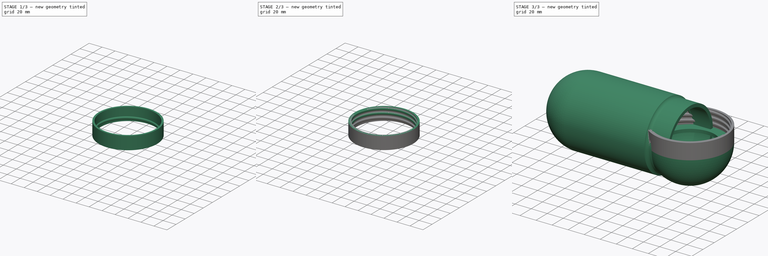
[diagram: build sequence overview — one tinted view per stage of 3, left to right]
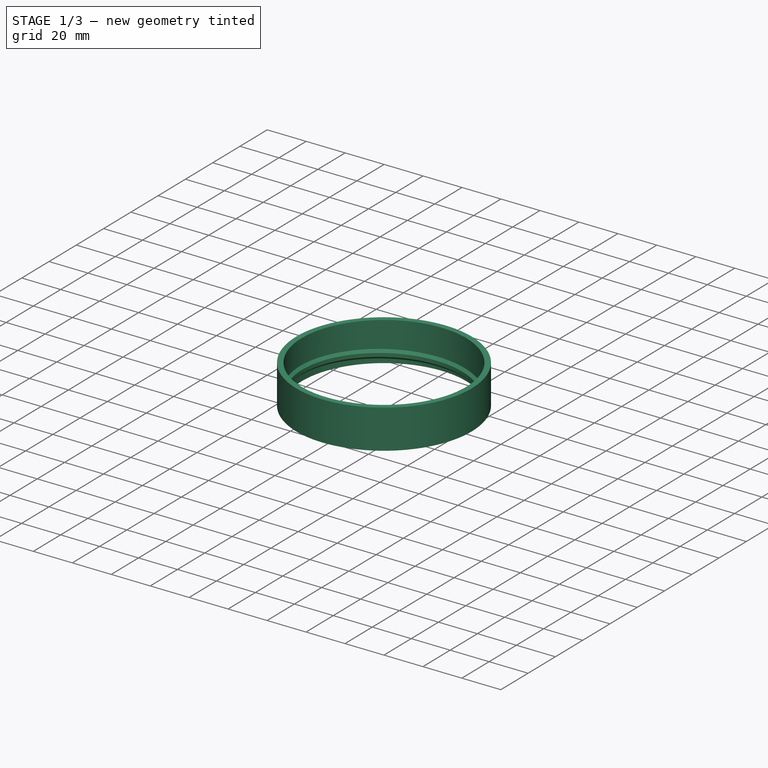
[diagram: stage 1 of 3 — iso view after this stage's code; geometry added in this stage tinted green]
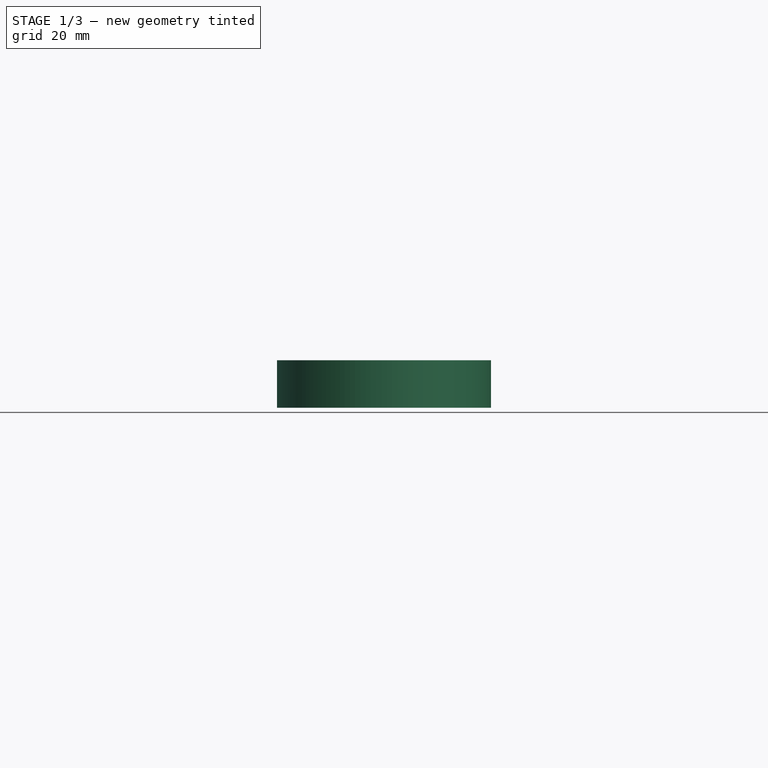
[diagram: stage 1 of 3 — front view after this stage's code; geometry added in this stage tinted green]
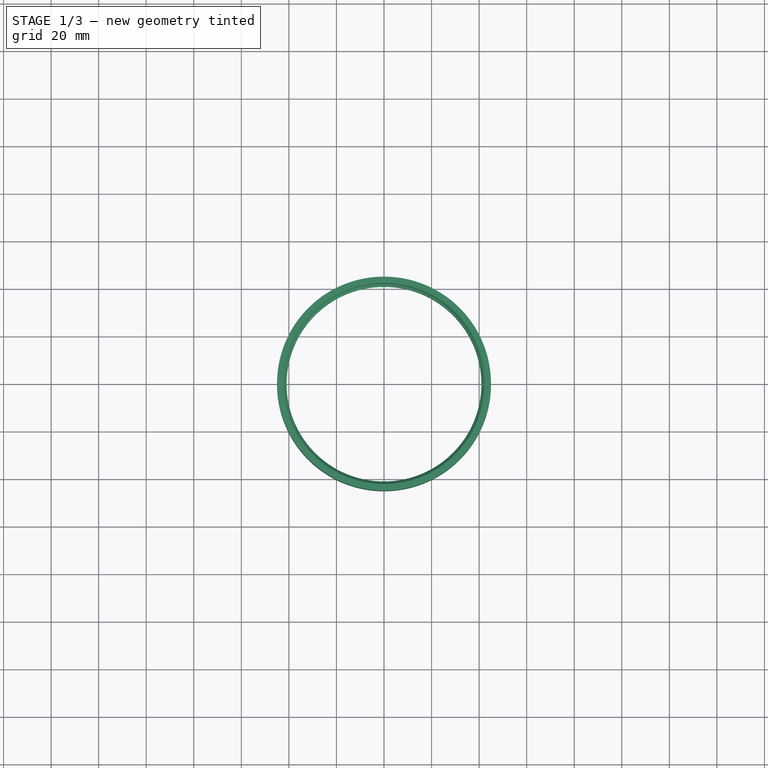
[diagram: stage 1 of 3 — top view after this stage's code; geometry added in this stage tinted green]
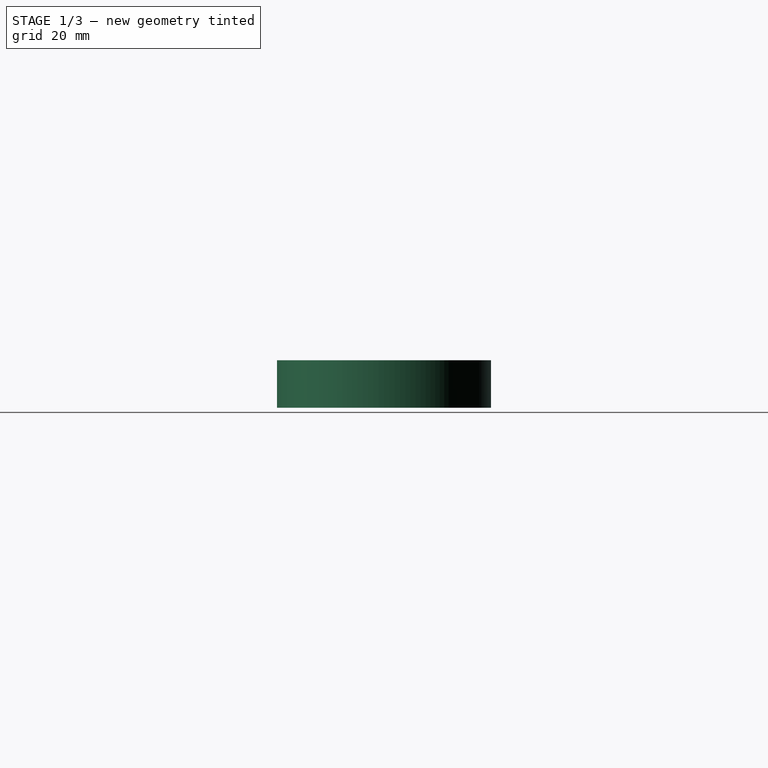
[diagram: stage 1 of 3 — right view after this stage's code; geometry added in this stage tinted green]
FCSTD DOCUMENT  (FreeCAD 0.19R)
Label: CrocSaintGerard_V2
License: All rights reserved
LicenseURL: http://en.wikipedia.org/wiki/All_rights_reserved
objects: Sketcher::SketchObject×5, PartDesign::Revolution×2, PartDesign::Body×2, Part::Helix×1, PartDesign::Pad×1, PartDesign::ShapeBinder×1, PartDesign::AdditivePipe×1, PartDesign::LinearPattern×1, PartDesign::Pocket×1
note: 20 computed .brp shape members not serialized (recipe doc carries the construction recipe); baked Part::Feature solids carry a one-line shape summary decoded from their .brp

FEATURE [Part::Helix] Helix
  Angle = 0
  AttacherType = Attacher::AttachEngine3D
  Height = 6.22
  LocalCoord = 0
  Pitch = 6.23
  Radius = 40.5
  Style = 1
FEATURE [Sketcher::SketchObject] Sketch001  label="sketch_cylindre_base"
  FullyConstrained = true
  MapMode = 5
  Support = -> [XY_Plane]
  sketch-geometry (2):
    g0: Circle CenterX=0 CenterY=0 CenterZ=0 NormalX=0 NormalY=0 NormalZ=1 AngleXU=0 Radius=42.25
    g1: Circle CenterX=0 CenterY=0 CenterZ=0 NormalX=0 NormalY=0 NormalZ=1 AngleXU=0 Radius=45
  constraints (4):
    c: Coincident(g0,g-1)
    c: Coincident(g1,g0)
    c: Radius(g0) = 42.25
    c: Radius(g1) = 45
FEATURE [PartDesign::Pad] Pad  label="cylindre_base"
  Direction = (1,1,1)
  Length = 20
  Length2 = 100
  Profile = -> Sketch001
  Type = 0
FEATURE [Sketcher::SketchObject] Sketch002  label="sketch_profil_dent"
  FullyConstrained = true
  MapMode = 5
  Placement = pos=(0,0,0) rot=(1,0,0;1.5708rad)
  Support = -> [XZ_Plane]
  sketch-geometry (7):
    g0: LineSegment StartX=42.25 StartY=4.40427 StartZ=0 EndX=40.9557 EndY=3.11 EndZ=0
    g1: LineSegment StartX=40.9557 StartY=3.11 StartZ=0 EndX=40.9557 EndY=1.29427 EndZ=0
    g2: LineSegment StartX=40.9557 StartY=1.29427 StartZ=0 EndX=42.25 EndY=0 EndZ=0
    g3: LineSegment StartX=42.25 StartY=4.40427 StartZ=0 EndX=42.25 EndY=6.22 EndZ=0
    g4: LineSegment StartX=42.25 StartY=6.22 StartZ=0 EndX=43.25 EndY=6.22 EndZ=0
    g5: LineSegment StartX=43.25 StartY=6.22 StartZ=0 EndX=43.25 EndY=0 EndZ=0
    g6: LineSegment StartX=43.25 StartY=0 StartZ=0 EndX=42.25 EndY=0 EndZ=0
  constraints (21):
    c: Coincident(g0,g1)
    c: Vertical(g1)
    c: Coincident(g1,g2)
    c: DistanceX(g-2,g2) = 42.25
    c: PointOnObject(g2,g-1)
    c: Coincident(g0,g3)
    c: Vertical(g3)
    c: Coincident(g3,g4)
    c: Horizontal(g4)
    c: Coincident(g4,g5)
    c: PointOnObject(g5,g-1)
    c: Vertical(g5)
    c: Coincident(g5,g6)
    c: Coincident(g6,g2)
    c: DistanceX(g4,g4) = 1
    c: Equal(g3,g1)
    c: Equal(g2,g0)
    c: Angle(g2,g-1) = 0.785398
    c: Equal(g1,g3)
    c: DistanceY(g5,g5) = 6.22
    c: DistanceX(g-2,g0) = 42.25
FEATURE [PartDesign::ShapeBinder] ShapeBinder  label="ShapeBinder-helix"
  Support = -> [Helix]
  TraceSupport = false
FEATURE [PartDesign::AdditivePipe] AdditivePipe  label="filet"
  AuxilleryCurvelinear = true
  AuxillerySpineTangent = false
  BaseFeature = -> Pad
  Binormal = (0,0,0)
  Mode = 2
  Profile = -> Sketch002
  Spine = -> ShapeBinder
  SpineTangent = false
  Transformation = 0
  Transition = 0
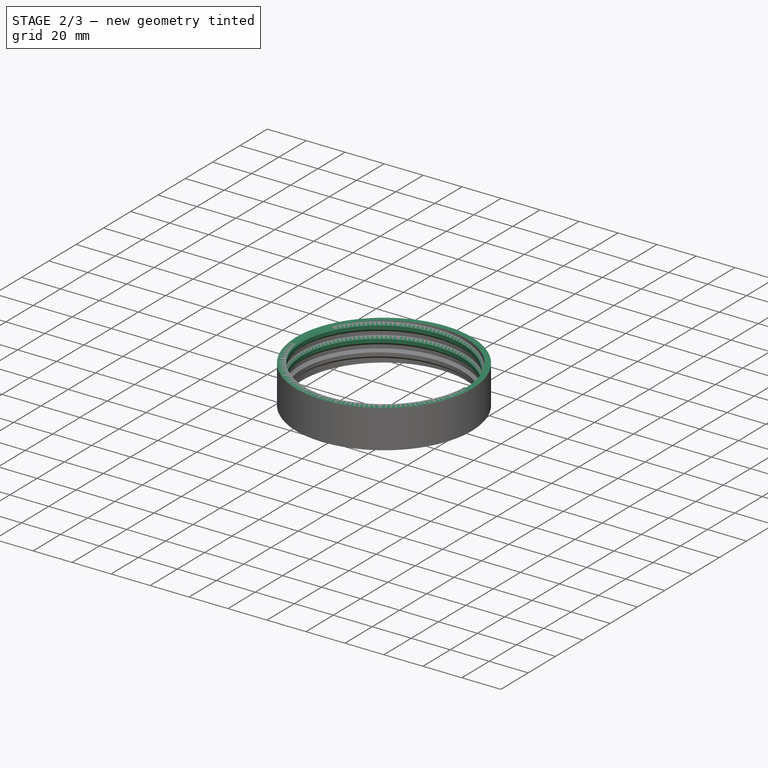
[diagram: stage 2 of 3 — iso view after this stage's code; geometry added in this stage tinted green]
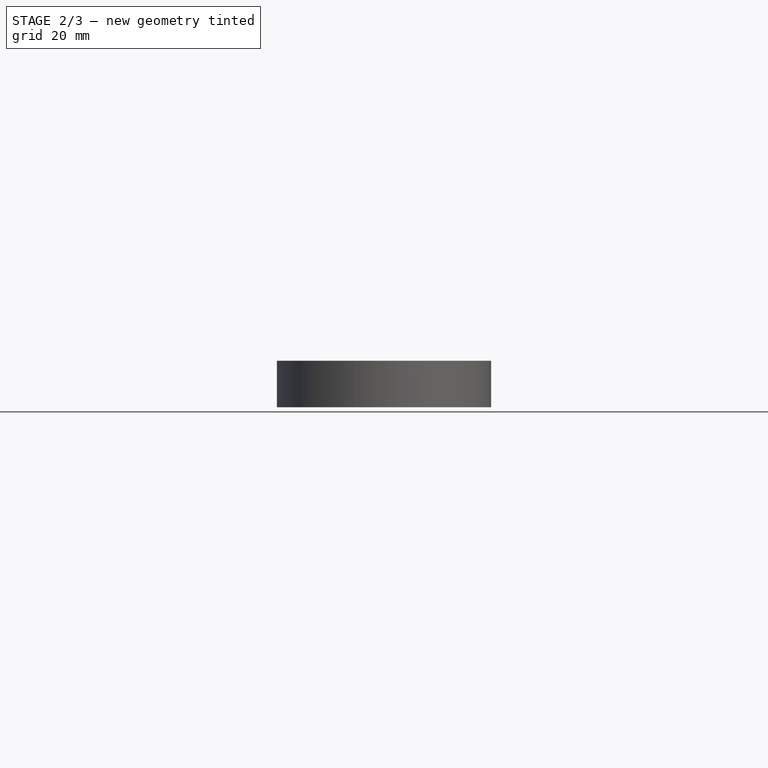
[diagram: stage 2 of 3 — front view after this stage's code; geometry added in this stage tinted green]
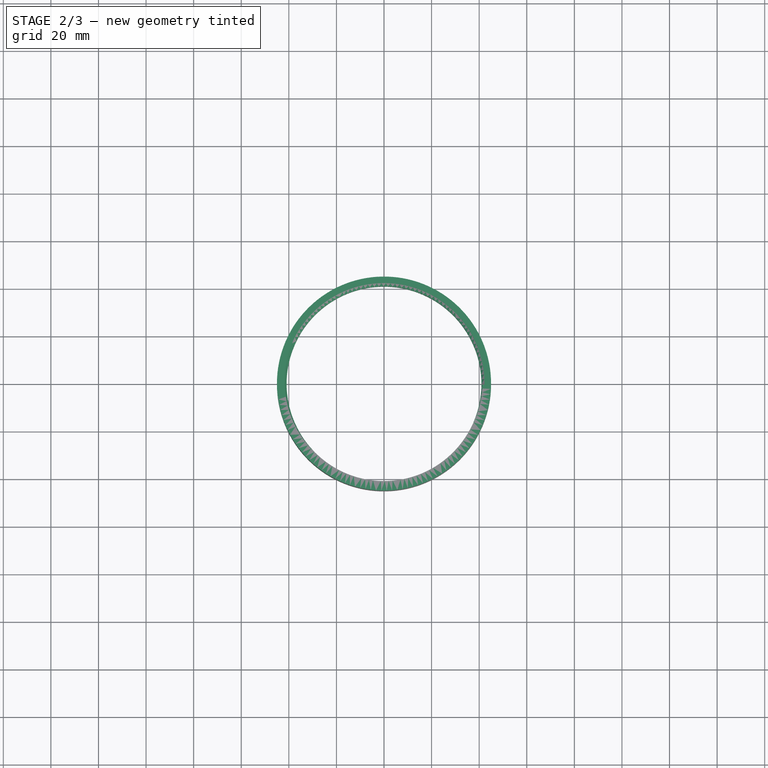
[diagram: stage 2 of 3 — top view after this stage's code; geometry added in this stage tinted green]
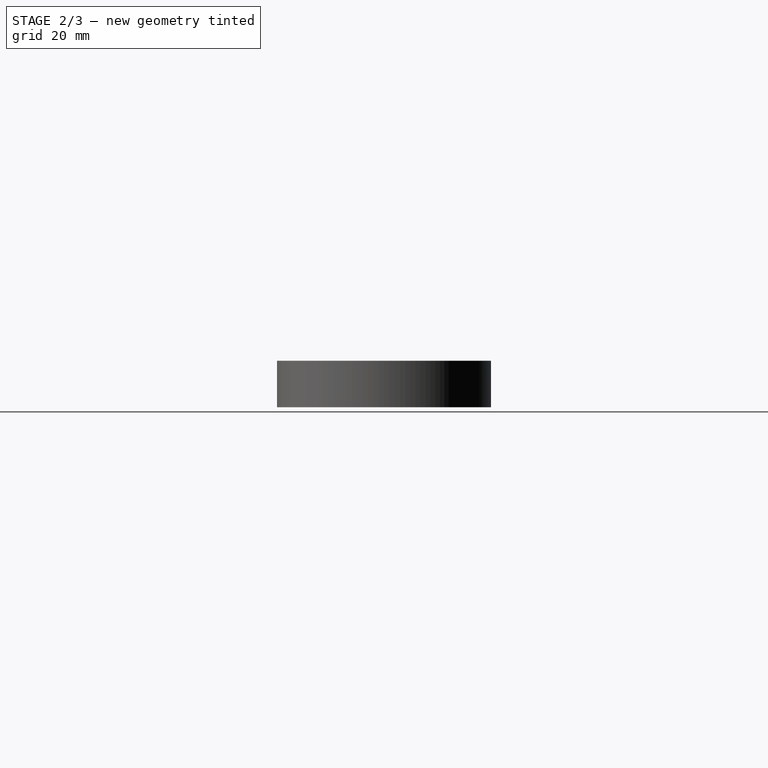
[diagram: stage 2 of 3 — right view after this stage's code; geometry added in this stage tinted green]
FEATURE [PartDesign::LinearPattern] LinearPattern  label="ajout_filets"
  BaseFeature = -> AdditivePipe
  Direction = -> Z_Axis
  Length = 12.46
  Occurrences = 3
  Originals = -> [AdditivePipe]
FEATURE [Sketcher::SketchObject] Sketch003  label="sketch_decoupe_filetage"
  FullyConstrained = true
  MapMode = 5
  Placement = pos=(0,0,0) rot=(1,0,0;1.5708rad)
  Support = -> [XZ_Plane]
  sketch-geometry (4):
    g0: LineSegment StartX=-90 StartY=29.5 StartZ=0 EndX=90 EndY=29.5 EndZ=0
    g1: LineSegment StartX=90 StartY=29.5 StartZ=0 EndX=90 EndY=19.5 EndZ=0
    g2: LineSegment StartX=90 StartY=19.5 StartZ=0 EndX=-90 EndY=19.5 EndZ=0
    g3: LineSegment StartX=-90 StartY=19.5 StartZ=0 EndX=-90 EndY=29.5 EndZ=0
  constraints (11):
    c: Coincident(g0,g1)
    c: Coincident(g1,g2)
    c: Coincident(g2,g3)
    c: Coincident(g3,g0)
    c: Horizontal(g2)
    c: Vertical(g1)
    c: Vertical(g3)
    c: DistanceY(g-1,g1) = 19.5
    c: Symmetric(g0,g0,g-2)
    c: DistanceY(g1,g1) = 10
    c: DistanceX(g0,g0) = 180
FEATURE [PartDesign::Pocket] Pocket  label="decoupe_filetage"
  BaseFeature = -> LinearPattern
  Length = 200
  Length2 = 100
  Midplane = true
  Profile = -> Sketch003
  Type = 0
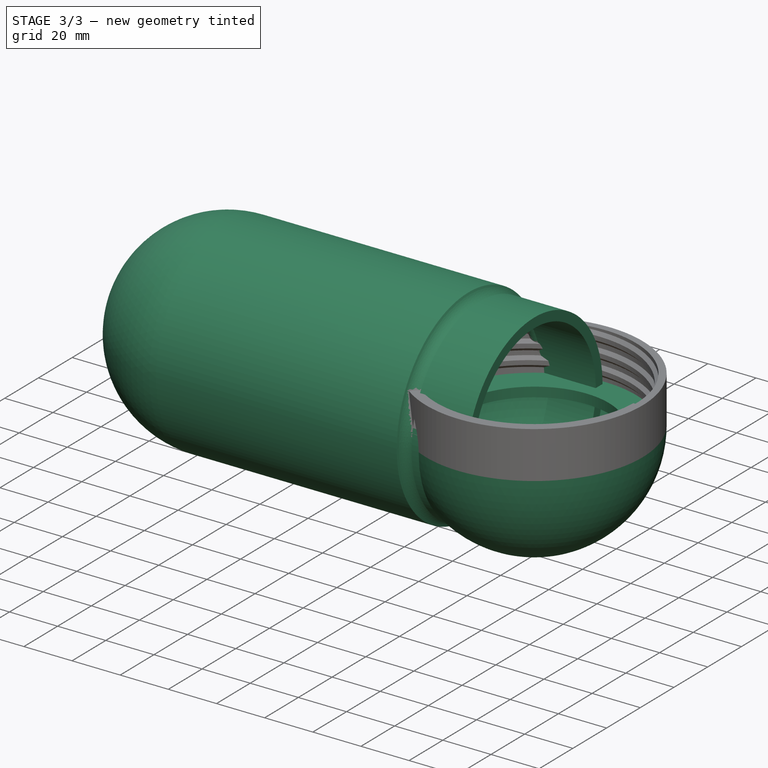
[diagram: stage 3 of 3 — iso view after this stage's code; geometry added in this stage tinted green]
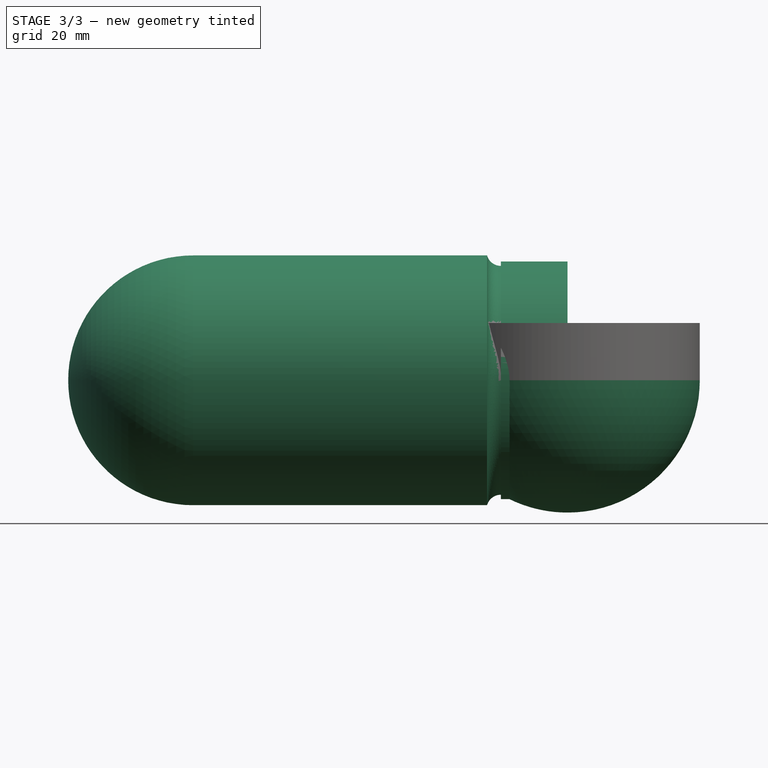
[diagram: stage 3 of 3 — front view after this stage's code; geometry added in this stage tinted green]
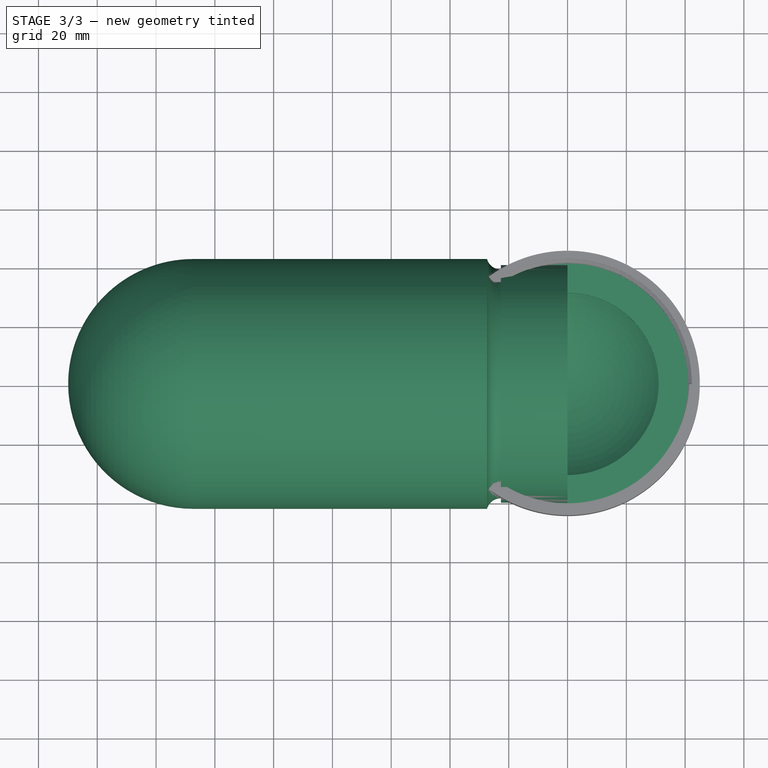
[diagram: stage 3 of 3 — top view after this stage's code; geometry added in this stage tinted green]
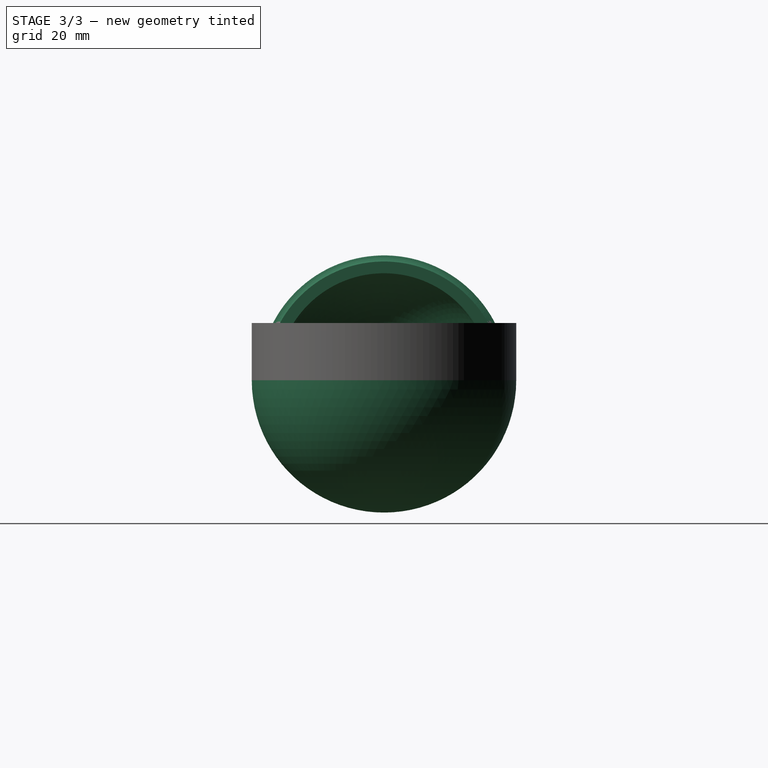
[diagram: stage 3 of 3 — right view after this stage's code; geometry added in this stage tinted green]
FEATURE [Sketcher::SketchObject] Sketch008  label="sketch_enceinte_verre"
  FullyConstrained = true
  MapMode = 5
  Support = -> [XY_Plane003]
  sketch-geometry (11):
    g0: ArcOfCircle CenterX=-127.4 CenterY=0 CenterZ=0 NormalX=0 NormalY=0 NormalZ=1 AngleXU=0 Radius=42.5 StartAngle=1.5708 EndAngle=3.14159
    g1: ArcOfCircle CenterX=-127.4 CenterY=0 CenterZ=0 NormalX=0 NormalY=0 NormalZ=1 AngleXU=0 Radius=38.5 StartAngle=1.5708 EndAngle=3.14159
    g2: LineSegment StartX=-127.4 StartY=38.5 StartZ=0 EndX=-27.4 EndY=38.5 EndZ=0
    g3: ArcOfCircle CenterX=-24.2871 CenterY=39.1905 CenterZ=0 NormalX=0 NormalY=0 NormalZ=1 AngleXU=0 Radius=3.18854 StartAngle=3.35987 EndAngle=5.2334
    g4: LineSegment StartX=-22.7 StartY=36.425 StartZ=0 EndX=0 EndY=36.425 EndZ=0
    g5: LineSegment StartX=-127.4 StartY=42.5 StartZ=0 EndX=-27.4 EndY=42.5 EndZ=0
    g6: ArcOfCircle CenterX=-22.7 CenterY=43.802 CenterZ=0 NormalX=0 NormalY=0 NormalZ=1 AngleXU=0 Radius=4.87701 StartAngle=3.41184 EndAngle=4.71239
    g7: LineSegment StartX=-22.7 StartY=38.925 StartZ=0 EndX=-22.7 EndY=40.425 EndZ=0
    g8: LineSegment StartX=-22.7 StartY=40.425 StartZ=0 EndX=0 EndY=40.425 EndZ=0
    g9: LineSegment StartX=0 StartY=40.425 StartZ=0 EndX=0 EndY=36.425 EndZ=0
    g10: LineSegment StartX=-165.9 StartY=4.7e-15 StartZ=0 EndX=-169.9 EndY=5.2e-15 EndZ=0
  constraints (35):
    c: PointOnObject(g0,g-1)
    c: PointOnObject(g0,g-1)
    c: Coincident(g1,g0)
    c: PointOnObject(g1,g-1)
    c: Angle(g1) = 1.5708
    c: Angle(g0) = 1.5708
    c: Tangent(g1,g2) = 1.5708
    c: Coincident(g3,g2)
    c: Coincident(g4,g3)
    c: PointOnObject(g4,g-2)
    c: Horizontal(g4)
    c: Coincident(g5,g0)
    c: Horizontal(g5)
    c: Coincident(g6,g5)
    c: Coincident(g6,g7)
    c: Coincident(g7,g8)
    c: PointOnObject(g8,g-2)
    c: Horizontal(g8)
    c: Coincident(g8,g9)
    c: Coincident(g9,g4)
    c: Coincident(g10,g0)
    c: DistanceX(g10,g10) = 4
    c: Radius(g0) = 42.5
    c: Coincident(g1,g10)
    c: DistanceY(g9,g9) = 4
    c: Perpendicular(g6,g7)
    c: Vertical(g7)
    c: DistanceY(g-1,g4) = 36.425
    c: Equal(g4,g8)
    c: DistanceX(g8,g8) = 22.7
    c: DistanceX(g-2,g5) = -27.4
    c: Equal(g2,g5)
    c: PointOnObject(g3,g6)
    c: DistanceY(g7,g7) = 1.5
    c: DistanceX(g5,g5) = 100
FEATURE [PartDesign::Revolution] Revolution  label="revolution_enceinte_verre"
  AllowMultiFace = false
  Angle = 360
  Axis = (1,0,0)
  Base = (0,0,0)
  Profile = -> Sketch008
  ReferenceAxis = -> Sketch008 [H_Axis]
FEATURE [PartDesign::Body] Body003  label="enceinte_verre"
  Group = -> [Sketch008,Revolution]
  Origin = -> Origin003
  Placement = pos=(-3.8e-15,0,-1.78e-14) rot=(0,1,0;1.5708rad)
  Tip = -> Revolution
FEATURE [Sketcher::SketchObject] Sketch
  FullyConstrained = true
  MapMode = 5
  Placement = pos=(0,0,0) rot=(1,0,0;1.5708rad)
  Support = -> [XZ_Plane]
  expr: Constraints[7] = 4mm
  sketch-geometry (6):
    g0: ArcOfCircle CenterX=0 CenterY=0 CenterZ=0 NormalX=0 NormalY=0 NormalZ=1 AngleXU=0 Radius=45 StartAngle=3.14159 EndAngle=4.71239
    g1: ArcOfCircle CenterX=0 CenterY=0 CenterZ=0 NormalX=0 NormalY=0 NormalZ=1 AngleXU=0 Radius=41.1947 StartAngle=3.23885 EndAngle=4.71239
    g2: LineSegment StartX=-7.6e-15 StartY=-41.1947 StartZ=0 EndX=-8.3e-15 EndY=-45 EndZ=0
    g3: LineSegment StartX=-45 StartY=5.5e-15 StartZ=0 EndX=-31 EndY=5.5e-15 EndZ=0
    g4: LineSegment StartX=-31 StartY=5.5e-15 StartZ=0 EndX=-31 EndY=-4 EndZ=0
    g5: LineSegment StartX=-31 StartY=-4 StartZ=0 EndX=-41 EndY=-4 EndZ=0
  constraints (18):
    c: Coincident(g0,g-1)
    c: PointOnObject(g0,g-1)
    c: PointOnObject(g0,g-2)
    c: Coincident(g1,g0)
    c: PointOnObject(g1,g-2)
    c: Coincident(g2,g1)
    c: Coincident(g2,g0)
    c: DistanceX(g0,g1) = 4
    c: Radius(g0) = 45
    c: Coincident(g3,g4)
    c: Vertical(g4)
    c: Coincident(g4,g5)
    c: Coincident(g5,g1)
    c: Horizontal(g5)
    c: Horizontal(g3)
    c: Coincident(g3,g0)
    c: DistanceY(g4,g4) = 4
    c: DistanceX(g5,g5) = 10
FEATURE [PartDesign::Revolution] Revolution001
  Angle = 360
  Axis = (0,-2e-16,1)
  Base = (0,0,0)
  BaseFeature = -> Pocket
  Profile = -> Sketch
  ReferenceAxis = -> Sketch [V_Axis]
FEATURE [PartDesign::Body] Body  label="fixation_enceinte_verre"
  Group = -> [Sketch001,Pad,Sketch002,ShapeBinder,AdditivePipe,LinearPattern,Sketch003,Pocket,Sketch,Revolution001]
  Origin = -> Origin
  Tip = -> Revolution001
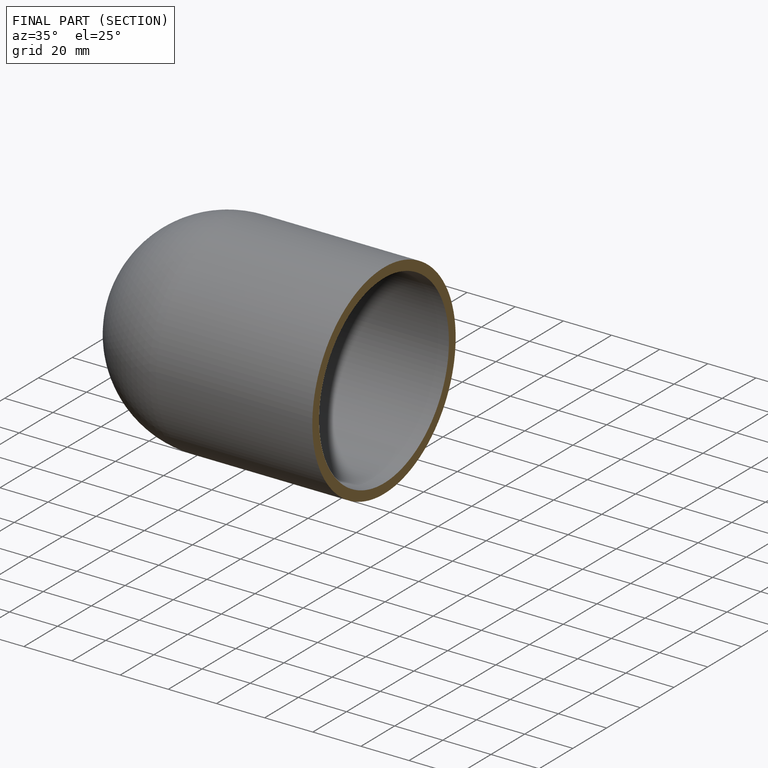
[diagram: finished part — half-section view (interior)]
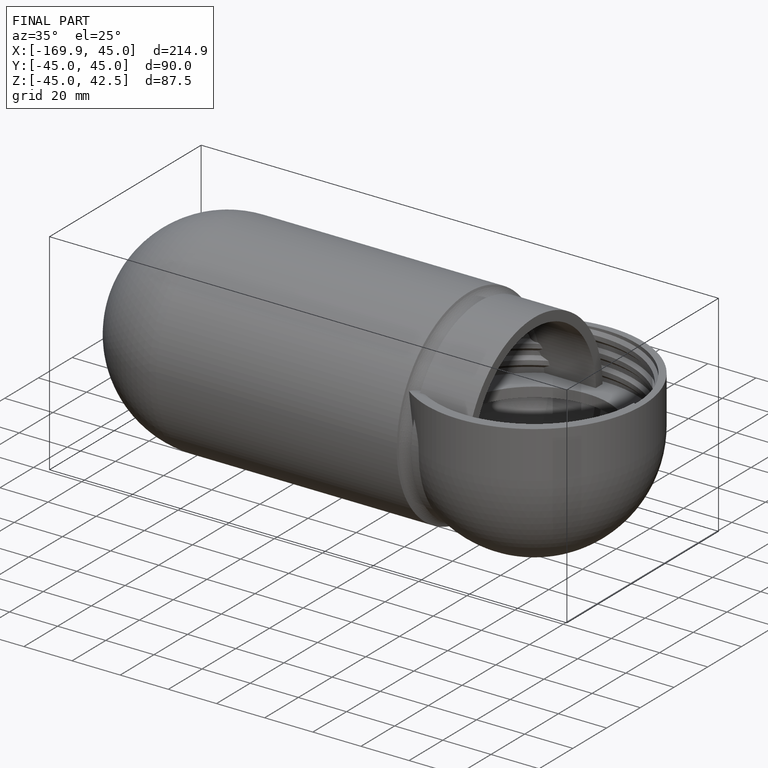
[diagram: finished part — iso view with bounding-box wireframe]
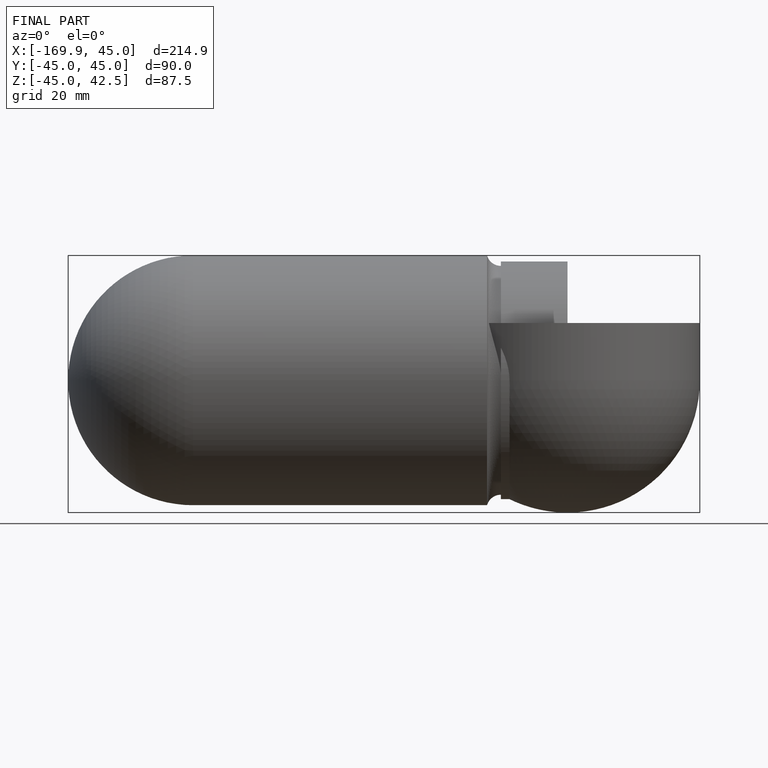
[diagram: finished part — front view with bounding-box wireframe]
